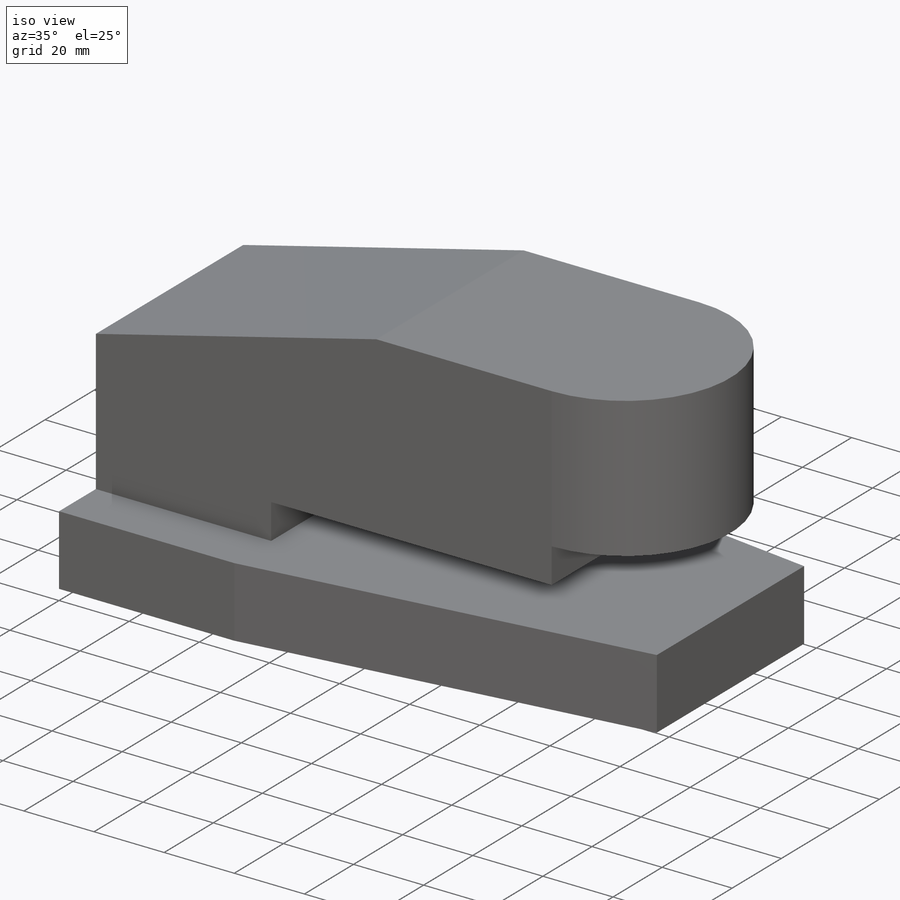
[diagram: iso view]
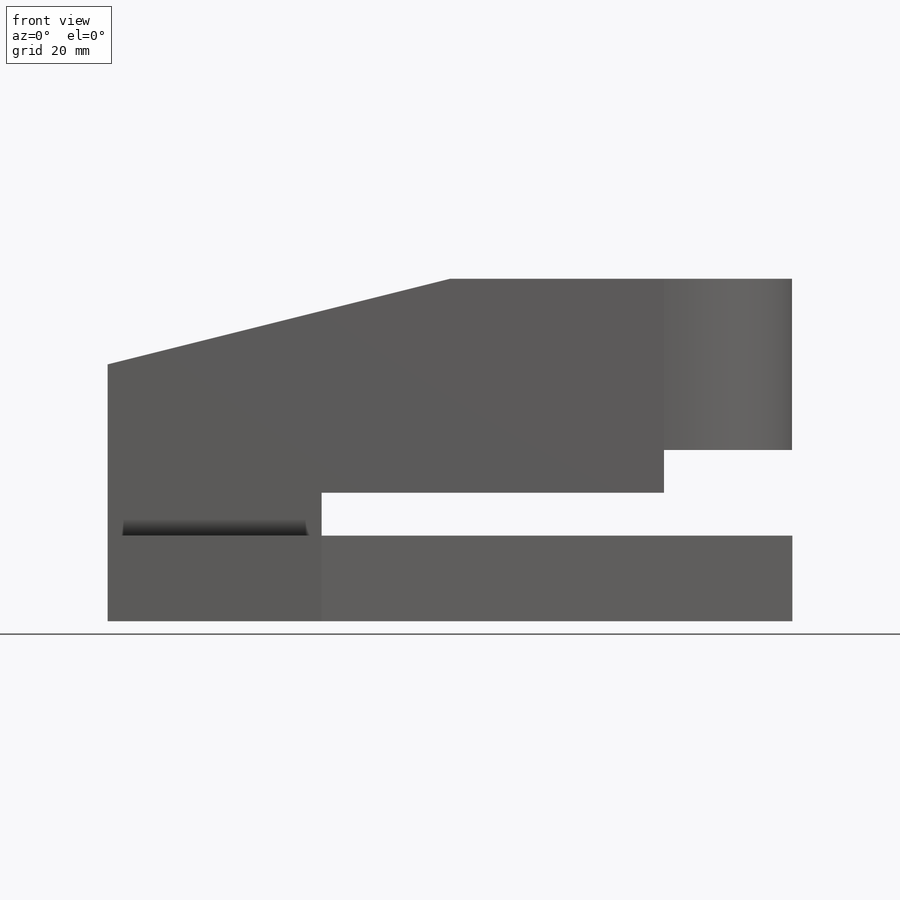
[diagram: front view]
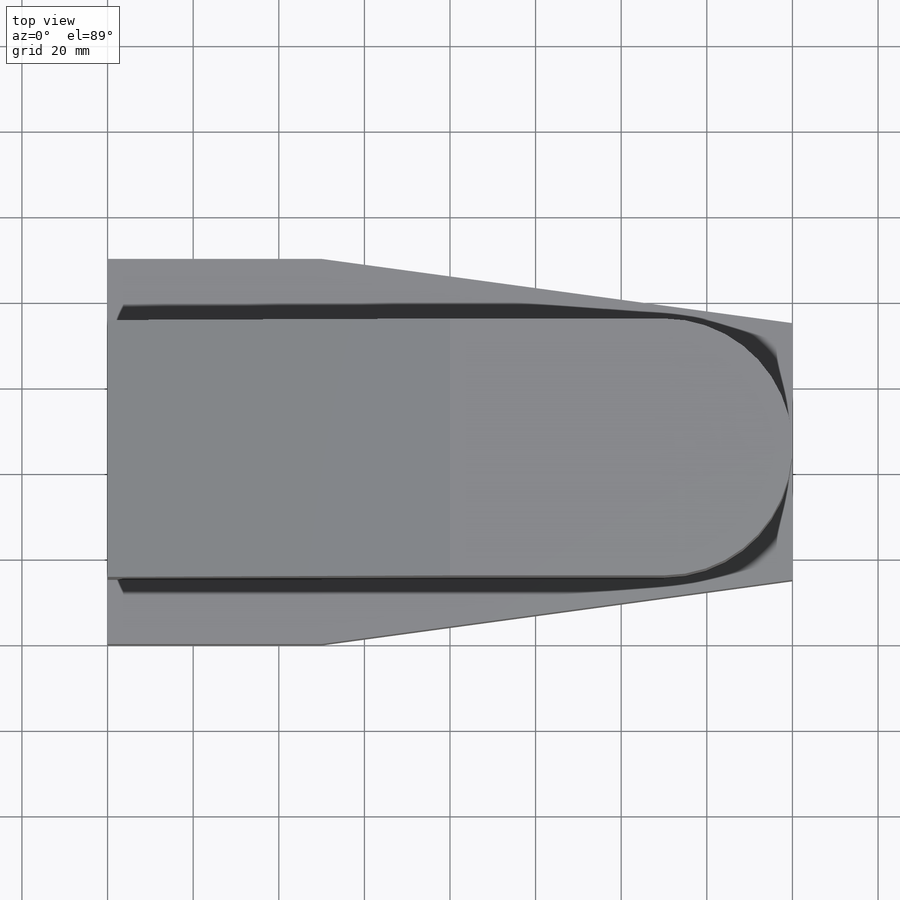
[diagram: top view]
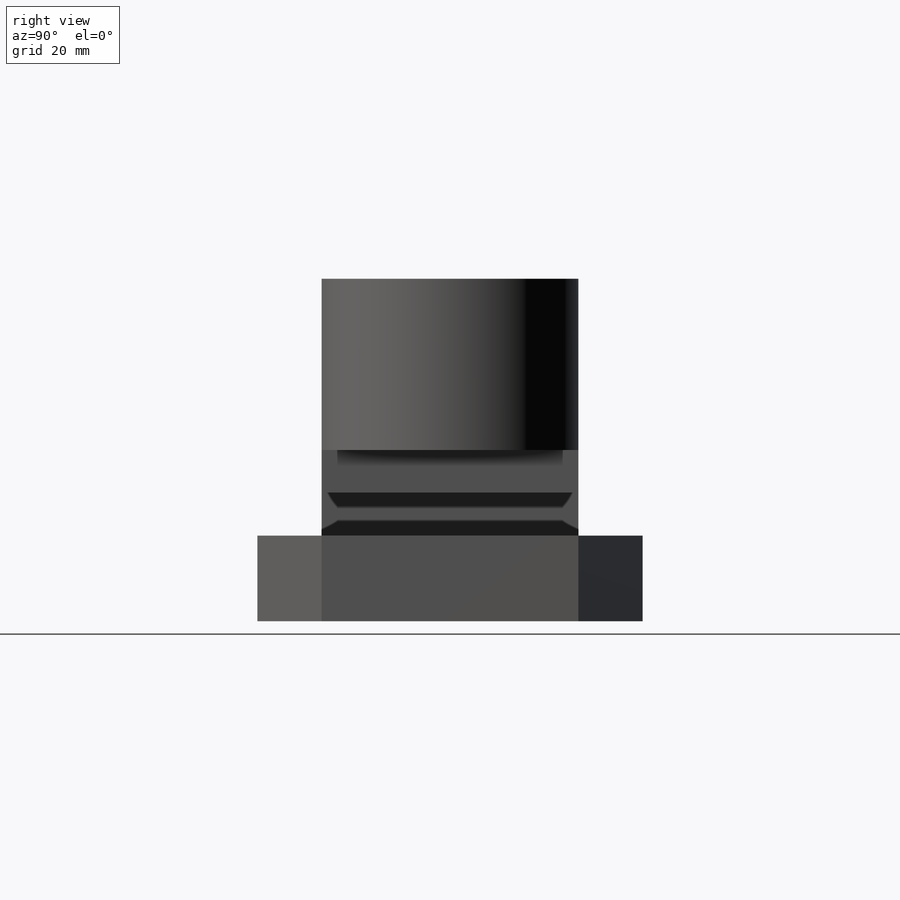
[diagram: right view]
SOLIDWORKS PART (.sldprt)
format: sldprt  version: not decoded by parser v0  size: 183,296 bytes
history: native  units: mm
features: sketch x4, extrude x3, material x1, plane x1, cut_extrude x1 (+16 scaffold rows collapsed)
feature tree (26):
  scaffold x16  (default folders/planes/origin — collapsed)
  material  "Material <not specified>"
  sketch  "Sketch1"  dims[c1.D1=160.0mm c1.D2=90.0mm c1.D3=15.0mm c1.D4=15.0mm c1.D5=110.0mm c1.D6=110.0mm c2.D1=160.0mm]
  extrude  "Extrude1"  Depth=20mm
  plane  "Plane1"  Offset=15mm
  sketch  "Sketch2"  dims[D1=20.0mm D2=20.0mm D3=40.0mm D4=80.0mm]
  extrude  "Extrude2"  Depth=60mm
  sketch  "Sketch3"
  sketch  "Sketch4"  dims[D1=30.0mm D2=10.0mm]
  cut_extrude  "Extrude8"  Depth=40mm
  extrude  "Extrude9"  Depth=60mm
decode coverage: 7 of 8 modeling features carry decoded parameters
note: suppression state not decoded; provenance and decode notes live in map.json
